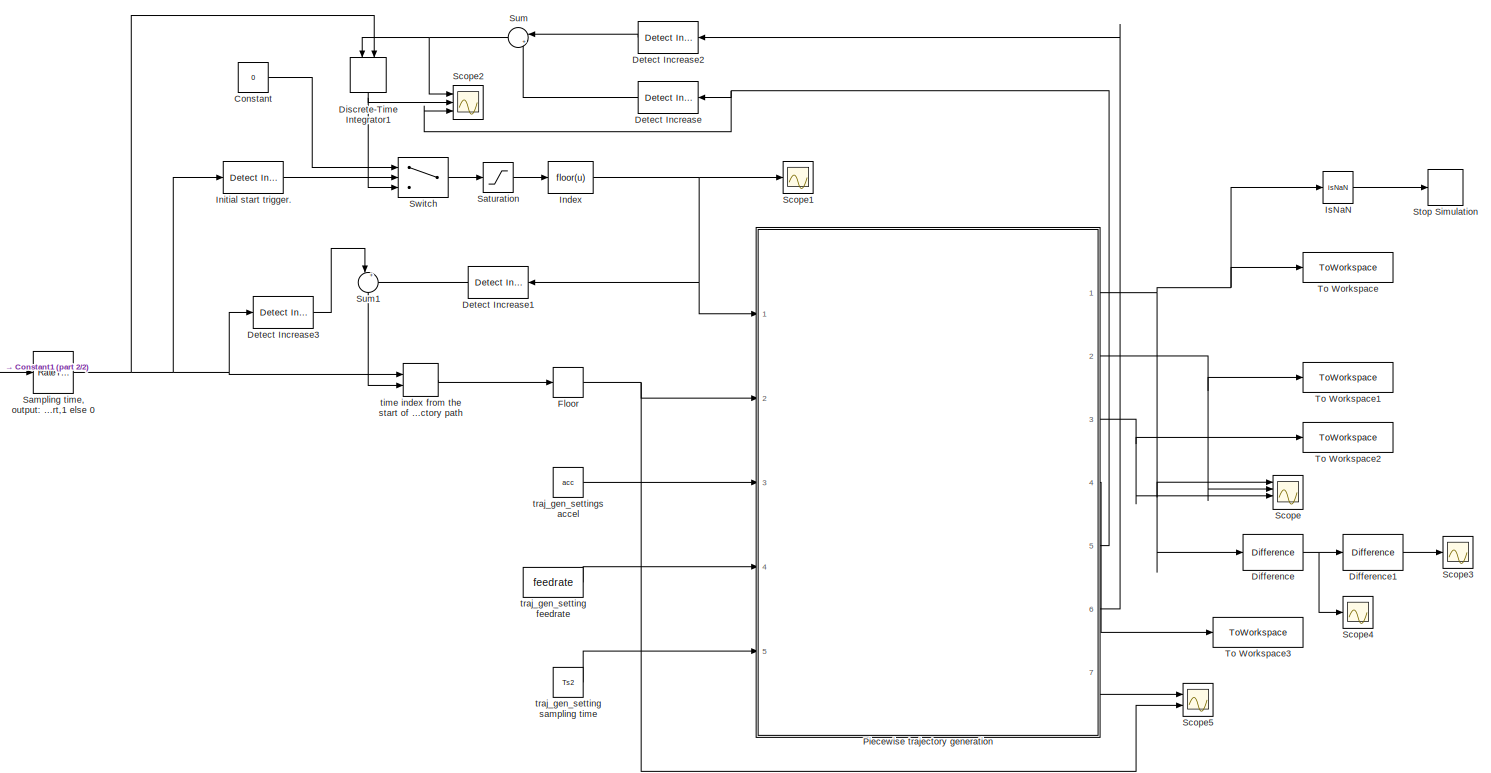
[diagram: root canvas - part 1/2, most of the canvas]
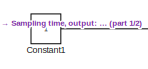
[diagram: root canvas - part 2/2, middle left region]
MODEL slx_403ac8366b55
KIND model
CONFIG AbsTol = auto
CONFIG EnableMultiTasking = on
CONFIG FixedStep = auto
CONFIG MaxStep = auto
CONFIG MinStep = auto
CONFIG RelTol = 1e-3
CONFIG SampleTimeConstraint = Unconstrained
CONFIG SolverName = FixedStepDiscrete
CONFIG StartTime = 0.0
CONFIG StopTime = 600
BLOCK [Constant] Constant
  SampleTime = Ts2
  Value = 0
BLOCK [Constant] Constant1
BLOCK [Reference] Detect Increase  REF=simulink/Logic and Bit
Operations/Detect
Increase
  NameLocation = top
  Ports = [1, 1]
  SourceBlock = simulink/Logic and Bit\nOperations/Detect\nIncrease
  SourceProductBaseCode = SL
  SourceType = Detect Increase
BLOCK [Reference] Detect Increase1  REF=simulink/Logic and Bit
Operations/Detect
Increase
  Ports = [1, 1]
  SourceBlock = simulink/Logic and Bit\nOperations/Detect\nIncrease
  SourceProductBaseCode = SL
  SourceType = Detect Increase
BLOCK [Reference] Detect Increase2  REF=simulink/Logic and Bit
Operations/Detect
Increase
  NameLocation = top
  Ports = [1, 1]
  SourceBlock = simulink/Logic and Bit\nOperations/Detect\nIncrease
  SourceProductBaseCode = SL
  SourceType = Detect Increase
BLOCK [Reference] Detect Increase3  REF=simulink/Logic and Bit
Operations/Detect
Increase
  Ports = [1, 1]
  SourceBlock = simulink/Logic and Bit\nOperations/Detect\nIncrease
  SourceProductBaseCode = SL
  SourceType = Detect Increase
BLOCK [Reference] Difference  REF=simulink/Discrete/Difference
  Ports = [1, 1]
  SourceBlock = simulink/Discrete/Difference
  SourceProductBaseCode = SL
  SourceType = Difference
BLOCK [Reference] Difference1  REF=simulink/Discrete/Difference
  Ports = [1, 1]
  SourceBlock = simulink/Discrete/Difference
  SourceProductBaseCode = SL
  SourceType = Difference
BLOCK [DiscreteIntegrator] Discrete-Time Integrator1
  ExternalReset = rising
  ICPrevOutput = DiscIntNeverNeededParam
  ICPrevScaledInput = DiscIntNeverNeededParam
  InitialConditionSetting = Auto
  NameLocation = left
  OutDataTypeStr = uint32
  Ports = [2, 1]
  SampleTime = -1
  gainval = 1000
BLOCK [Rounding] Floor
BLOCK [Fcn] Index
  Expr = floor(u)
BLOCK [Reference] Initial start trigger.  REF=simulink/Logic and Bit
Operations/Detect
Increase
  Ports = [1, 1]
  SourceBlock = simulink/Logic and Bit\nOperations/Detect\nIncrease
  SourceProductBaseCode = SL
  SourceType = Detect Increase
BLOCK [RelationalOperator] IsNaN
  InputSameDT = off
  Operator = isNaN
  OutDataTypeStr = boolean
  Ports = [1, 1]
  RndMeth = Simplest
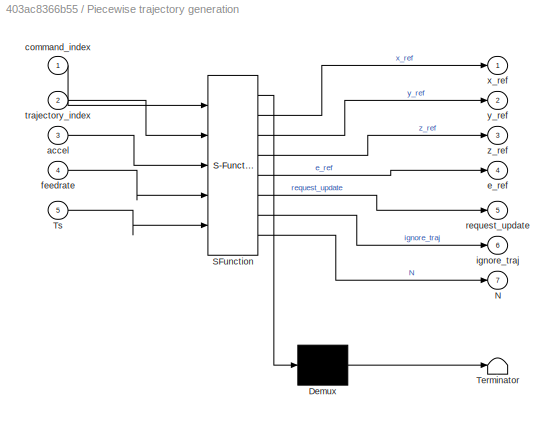
BLOCK [SubSystem] Piecewise trajectory generation
  ErrorFcn = Stateflow.Translate.translate
  PermitHierarchicalResolution = ExplicitOnly
  Ports = [5, 7]
  RequestExecContextInheritance = off
  SFBlockType = MATLAB Function
  TreatAsAtomicUnit = on
BLOCK [Demux] Piecewise trajectory generation/ Demux 
  Outputs = 1
  Ports = [1, 1]
BLOCK [S-Function] Piecewise trajectory generation/ SFunction 
  EnableBusSupport = on
  FunctionName = sf_sfun
  Parameters = simulink_commands
  PortCounts = [5 8]
  Ports = [5, 8]
  SFcnIsStateOwnerBlock = off
  SFunctionDeploymentMode = off
  Tag = Stateflow S-Function 5
BLOCK [Terminator] Piecewise trajectory generation/ Terminator 
BLOCK [Outport] Piecewise trajectory generation/N
  Port = 7
BLOCK [Inport] Piecewise trajectory generation/Ts
  Port = 5
BLOCK [Inport] Piecewise trajectory generation/accel
  Port = 3
BLOCK [Inport] Piecewise trajectory generation/command_index
BLOCK [Outport] Piecewise trajectory generation/e_ref
  Port = 4
BLOCK [Inport] Piecewise trajectory generation/feedrate
  Port = 4
BLOCK [Outport] Piecewise trajectory generation/ignore_traj
  Port = 6
BLOCK [Outport] Piecewise trajectory generation/request_update
  Port = 5
BLOCK [Inport] Piecewise trajectory generation/trajectory_index
  Port = 2
BLOCK [Outport] Piecewise trajectory generation/x_ref
BLOCK [Outport] Piecewise trajectory generation/y_ref
  Port = 2
BLOCK [Outport] Piecewise trajectory generation/z_ref
  Port = 3
BLOCK [RateTransition] Sampling time, output: if system start,1 else 0
  Deterministic = off
  Integrity = off
  OutPortSampleTime = Ts2
BLOCK [Saturate] Saturation
  LowerLimit = 0
  UpperLimit = TotalNumBlock-1
BLOCK [Scope] Scope
  Floating = off
  NumInputPorts = 4
  Ports = [4]
  ScopeSpecificationString = Simulink.scopes.TimeScopeBlockCfg('CurrentConfiguration', extmgr.ConfigurationSet(extmgr.Configuration('Core','General UI',true),extmgr.Configuration('Core','Source UI',true),extmgr.Configuration('Sources','WiredSimulink',true),extmgr.Configuration('Visuals','Time Domain',true,'SerializedDisplays',{struct('MinYLimReal','-25.00000','MaxYLimReal','225.00000','YLabelReal','','MinYLimMag','0.00000','M...<+1875ch>
BLOCK [Scope] Scope1
  Floating = off
  NumInputPorts = 1
  Ports = [1]
  ScopeSpecificationString = Simulink.scopes.TimeScopeBlockCfg('CurrentConfiguration', extmgr.ConfigurationSet(extmgr.Configuration('Core','General UI',true),extmgr.Configuration('Core','Source UI',true),extmgr.Configuration('Sources','WiredSimulink',true,'DataLoggingVariableName','ScopeData1'),extmgr.Configuration('Visuals','Time Domain',true,'SerializedDisplays',{struct('MinYLimReal','-129.5','MaxYLimReal','1165.5','YLabelR...<+1358ch>
BLOCK [Scope] Scope2
  Floating = off
  NumInputPorts = 3
  Ports = [3]
  ScopeSpecificationString = Simulink.scopes.TimeScopeBlockCfg('CurrentConfiguration', extmgr.ConfigurationSet(extmgr.Configuration('Core','General UI',true),extmgr.Configuration('Core','Source UI',true),extmgr.Configuration('Sources','WiredSimulink',true,'DataLoggingVariableName','ScopeData2'),extmgr.Configuration('Visuals','Time Domain',true,'SerializedDisplays',{struct('MinYLimReal','10.3829','MaxYLimReal','11.37146','YLab...<+1518ch>
BLOCK [Scope] Scope3
  Floating = off
  NumInputPorts = 1
  Ports = [1]
  ScopeSpecificationString = Simulink.scopes.TimeScopeBlockCfg('CurrentConfiguration', extmgr.ConfigurationSet(extmgr.Configuration('Core','General UI',true),extmgr.Configuration('Core','Source UI',true),extmgr.Configuration('Sources','WiredSimulink',true,'DataLoggingVariableName','ScopeData3'),extmgr.Configuration('Visuals','Time Domain',true,'SerializedDisplays',{struct('MinYLimReal','0.002548','MaxYLimReal','0.002582','YLa...<+1726ch>
BLOCK [Scope] Scope4
  Floating = off
  NumInputPorts = 1
  Ports = [1]
  ScopeSpecificationString = Simulink.scopes.TimeScopeBlockCfg('CurrentConfiguration', extmgr.ConfigurationSet(extmgr.Configuration('Core','General UI',true),extmgr.Configuration('Core','Source UI',true),extmgr.Configuration('Sources','WiredSimulink',true,'DataLoggingVariableName','ScopeData4'),extmgr.Configuration('Visuals','Time Domain',true,'SerializedDisplays',{struct('MinYLimReal','-0.0503','MaxYLimReal','0.05267','YLabe...<+1781ch>
BLOCK [Scope] Scope5
  Floating = off
  NumInputPorts = 2
  Ports = [2]
  ScopeSpecificationString = Simulink.scopes.TimeScopeBlockCfg('CurrentConfiguration', extmgr.ConfigurationSet(extmgr.Configuration('Core','General UI',true),extmgr.Configuration('Core','Source UI',true),extmgr.Configuration('Sources','WiredSimulink',true,'DataLoggingVariableName','ScopeData3'),extmgr.Configuration('Visuals','Time Domain',true,'SerializedDisplays',{struct('MinYLimReal','-572.5','MaxYLimReal','5152.5','YLabelR...<+1429ch>
BLOCK [Stop] Stop Simulation
BLOCK [Sum] Sum
  Inputs = |++
  NameLocation = top
  Ports = [2, 1]
BLOCK [Sum] Sum1
  Inputs = |++
  NameLocation = left
  Ports = [2, 1]
BLOCK [Switch] Switch
  Criteria = u2 > Threshold
  InputSameDT = off
  SaturateOnIntegerOverflow = off
BLOCK [ToWorkspace] To Workspace
  FixptAsFi = on
  MaxDataPoints = inf
  Ports = [1]
  SampleTime = -1
  SaveFormat = Timeseries
  VariableName = x
BLOCK [ToWorkspace] To Workspace1
  FixptAsFi = on
  MaxDataPoints = inf
  Ports = [1]
  SampleTime = -1
  SaveFormat = Timeseries
  VariableName = y
BLOCK [ToWorkspace] To Workspace2
  FixptAsFi = on
  MaxDataPoints = inf
  Ports = [1]
  SampleTime = -1
  SaveFormat = Timeseries
  VariableName = z
BLOCK [ToWorkspace] To Workspace3
  FixptAsFi = on
  MaxDataPoints = inf
  Ports = [1]
  SampleTime = -1
  SaveFormat = Timeseries
  VariableName = e
BLOCK [DiscreteIntegrator] time index from the start of trajectory path
  ExternalReset = rising
  ICPrevOutput = DiscIntNeverNeededParam
  ICPrevScaledInput = DiscIntNeverNeededParam
  IntegratorMethod = Accumulation: Backward Euler
  Ports = [2, 1]
  SampleTime = -1
  gainval = 1
BLOCK [Constant] traj_gen_setting feedrate
  SampleTime = Ts2
  Value = feedrate
BLOCK [Constant] traj_gen_setting sampling time
  SampleTime = Ts2
  Value = Ts2
BLOCK [Constant] traj_gen_settings accel
  SampleTime = Ts2
  Value = acc
LINE Constant1:1 -> Sampling time, output: if system start,1 else 0:1
LINE Constant:1 -> Switch:1
LINE Detect Increase1:1 -> Sum1:2
LINE Detect Increase2:1 -> Sum:1
LINE Detect Increase3:1 -> Sum1:1
LINE Detect Increase:1 -> Sum:2
LINE Difference1:1 -> Scope3:1
NET Difference:1 -> Difference1:1, Scope4:1
NET Discrete-Time Integrator1:1 -> Scope2:2, Switch:3
NET Floor:1 -> Piecewise trajectory generation:2, Scope5:2
NET Index:1 -> Detect Increase1:1, Piecewise trajectory generation:1, Scope1:1
LINE Initial start trigger.:1 -> Switch:2
LINE IsNaN:1 -> Stop Simulation:1
NET Piecewise trajectory generation:1 -> Difference:1, IsNaN:1, Scope:1, To Workspace:1
NET Piecewise trajectory generation:2 -> Scope:2, To Workspace1:1
NET Piecewise trajectory generation:3 -> Scope:3, To Workspace2:1
LINE Piecewise trajectory generation:4 -> To Workspace3:1
NET Piecewise trajectory generation:5 -> Detect Increase:1, Scope2:3
LINE Piecewise trajectory generation:6 -> Detect Increase2:1
LINE Piecewise trajectory generation:7 -> Scope5:1
NET Sampling time, output: if system start,1 else 0:1 -> Detect Increase3:1, Discrete-Time Integrator1:2, Initial start trigger.:1, time index from the start of trajectory path:1
LINE Saturation:1 -> Index:1
LINE Sum1:1 -> time index from the start of trajectory path:2
NET Sum:1 -> Discrete-Time Integrator1:1, Scope2:1
LINE Switch:1 -> Saturation:1
LINE time index from the start of trajectory path:1 -> Floor:1
LINE traj_gen_setting feedrate:1 -> Piecewise trajectory generation:4
LINE traj_gen_setting sampling time:1 -> Piecewise trajectory generation:5
LINE traj_gen_settings accel:1 -> Piecewise trajectory generation:3
note: NET lines group one-source signal fan-out (src -> all destinations, sorted); 1:1 wires keep LINE
CHART Piecewise trajectory generation states=1 transitions=1
  STATE_LABEL 'eML_blk_kernel()'
  STATE_LABEL 'SCRIPT:\nfunction [x_ref,y_ref,z_ref,e_ref,request_update,ignore_traj,N] = traj_generate(command_index,trajectory_index,accel,feedrate,Ts, simulink_commands)\n    % Command is a compressed version of trajectory with trapz profile. \n    % it contains fs, fe and points. If feedrate, accel and Ts are the same\n    % with that pre-generated, we could generate the identical trajectory.\n    % [These parame...<+1882ch>'
CHART  states=0 transitions=0
